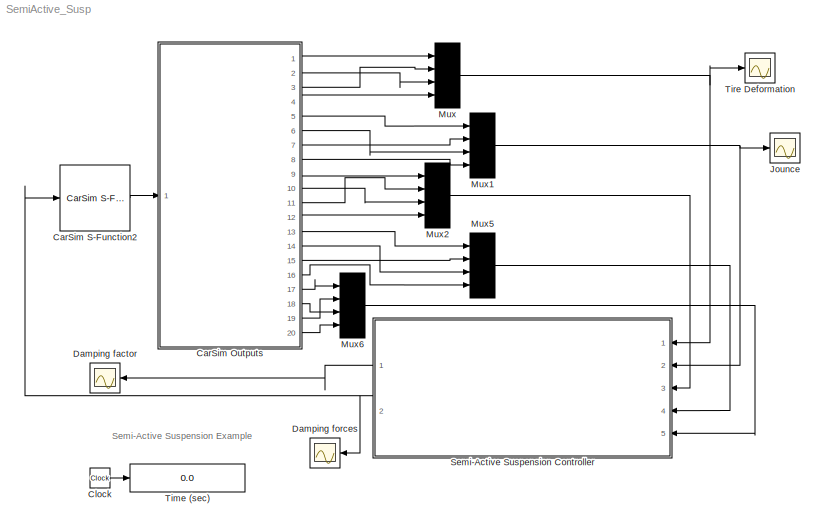
MODEL SemiActive_Susp
KIND model
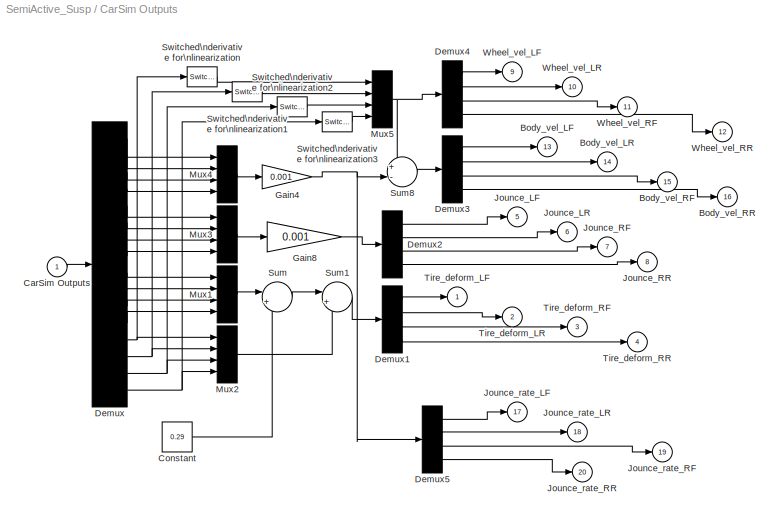
BLOCK [SubSystem] CarSim Outputs
  FunctionWithSeparateData = off
  MaskHideContents = off
  MinAlgLoopOccurrences = off
  Ports = [1, 20]
  PropExecContextOutsideSubsystem = off
  RTWSystemCode = Auto
BLOCK [Outport] CarSim Outputs/Body_vel_LF
  IconDisplay = Port number
  InitialOutput = 0
  Port = 13
BLOCK [Outport] CarSim Outputs/Body_vel_LR
  IconDisplay = Port number
  InitialOutput = 0
  Port = 14
BLOCK [Outport] CarSim Outputs/Body_vel_RF
  IconDisplay = Port number
  InitialOutput = 0
  Port = 15
BLOCK [Outport] CarSim Outputs/Body_vel_RR
  IconDisplay = Port number
  InitialOutput = 0
  Port = 16
BLOCK [Inport] CarSim Outputs/CarSim Outputs
  IconDisplay = Port number
  OutDataType = sfix(16)
  OutScaling = 2^0
BLOCK [Constant] CarSim Outputs/Constant
  OutDataType = sfix(16)
  OutScaling = 2^0
  Value = 0.29
BLOCK [Demux] CarSim Outputs/Demux
  Outputs = 16
  Ports = [1, 16]
BLOCK [Demux] CarSim Outputs/Demux1
  Ports = [1, 4]
BLOCK [Demux] CarSim Outputs/Demux2
  Ports = [1, 4]
BLOCK [Demux] CarSim Outputs/Demux3
  Ports = [1, 4]
BLOCK [Demux] CarSim Outputs/Demux4
  Ports = [1, 4]
BLOCK [Demux] CarSim Outputs/Demux5
  Ports = [1, 4]
BLOCK [Gain] CarSim Outputs/Gain4
  Gain = 0.001
  OutDataType = sfix(16)
  OutScaling = 2^0
  ParameterDataType = sfix(16)
  ParameterScaling = 2^0
BLOCK [Gain] CarSim Outputs/Gain8
  Gain = 0.001
  OutDataType = sfix(16)
  OutScaling = 2^0
  ParameterDataType = sfix(16)
  ParameterScaling = 2^0
BLOCK [Outport] CarSim Outputs/Jounce_LF
  IconDisplay = Port number
  InitialOutput = 0
  Port = 5
BLOCK [Outport] CarSim Outputs/Jounce_LR
  IconDisplay = Port number
  InitialOutput = 0
  Port = 6
BLOCK [Outport] CarSim Outputs/Jounce_RF
  IconDisplay = Port number
  InitialOutput = 0
  Port = 7
BLOCK [Outport] CarSim Outputs/Jounce_RR
  IconDisplay = Port number
  InitialOutput = 0
  Port = 8
BLOCK [Outport] CarSim Outputs/Jounce_rate_LF
  IconDisplay = Port number
  InitialOutput = 0
  Port = 17
BLOCK [Outport] CarSim Outputs/Jounce_rate_LR
  IconDisplay = Port number
  InitialOutput = 0
  Port = 18
BLOCK [Outport] CarSim Outputs/Jounce_rate_RF
  IconDisplay = Port number
  InitialOutput = 0
  Port = 19
BLOCK [Outport] CarSim Outputs/Jounce_rate_RR
  IconDisplay = Port number
  InitialOutput = 0
  Port = 20
BLOCK [Mux] CarSim Outputs/Mux1
  Ports = [4, 1]
BLOCK [Mux] CarSim Outputs/Mux2
  Ports = [4, 1]
BLOCK [Mux] CarSim Outputs/Mux3
  Ports = [4, 1]
BLOCK [Mux] CarSim Outputs/Mux4
  Ports = [4, 1]
BLOCK [Mux] CarSim Outputs/Mux5
  Ports = [4, 1]
BLOCK [Sum] CarSim Outputs/Sum
  IconShape = round
  Inputs = |++
  OutDataType = sfix(16)
  OutScaling = 2^0
  Ports = [2, 1]
BLOCK [Sum] CarSim Outputs/Sum1
  IconShape = round
  Inputs = |+-
  OutDataType = sfix(16)
  OutScaling = 2^0
  Ports = [2, 1]
BLOCK [Sum] CarSim Outputs/Sum8
  IconShape = round
  Inputs = +-|
  OutDataType = sfix(16)
  OutScaling = 2^0
  Ports = [2, 1]
BLOCK [Reference] CarSim Outputs/Switched\nderivative for\nlinearization  REF=simulink_extras/Linearization/Switched\nderivative for\nlinearization
  FunctionWithSeparateData = off
  Ports = [1, 1]
  RTWMemSecDataConstants = Inherit from model
  RTWMemSecDataInternal = Inherit from model
  RTWMemSecDataParameters = Inherit from model
  RTWMemSecFuncExecute = Inherit from model
  RTWMemSecFuncInitTerm = Inherit from model
  ShowPortLabels = FromPortIcon
  SourceBlock = simulink_extras/Linearization/Switched\nderivative for\nlinearization
  SourceType = Derivative for linearization
  SystemSampleTime = -1
  derivConst = 100
  switchVal = 0
BLOCK [Reference] CarSim Outputs/Switched\nderivative for\nlinearization1  REF=simulink_extras/Linearization/Switched\nderivative for\nlinearization
  FunctionWithSeparateData = off
  Ports = [1, 1]
  RTWMemSecDataConstants = Inherit from model
  RTWMemSecDataInternal = Inherit from model
  RTWMemSecDataParameters = Inherit from model
  RTWMemSecFuncExecute = Inherit from model
  RTWMemSecFuncInitTerm = Inherit from model
  ShowPortLabels = FromPortIcon
  SourceBlock = simulink_extras/Linearization/Switched\nderivative for\nlinearization
  SourceType = Derivative for linearization
  SystemSampleTime = -1
  derivConst = 100
  switchVal = 0
BLOCK [Reference] CarSim Outputs/Switched\nderivative for\nlinearization2  REF=simulink_extras/Linearization/Switched\nderivative for\nlinearization
  FunctionWithSeparateData = off
  Ports = [1, 1]
  RTWMemSecDataConstants = Inherit from model
  RTWMemSecDataInternal = Inherit from model
  RTWMemSecDataParameters = Inherit from model
  RTWMemSecFuncExecute = Inherit from model
  RTWMemSecFuncInitTerm = Inherit from model
  ShowPortLabels = FromPortIcon
  SourceBlock = simulink_extras/Linearization/Switched\nderivative for\nlinearization
  SourceType = Derivative for linearization
  SystemSampleTime = -1
  derivConst = 100
  switchVal = 0
BLOCK [Reference] CarSim Outputs/Switched\nderivative for\nlinearization3  REF=simulink_extras/Linearization/Switched\nderivative for\nlinearization
  FunctionWithSeparateData = off
  Ports = [1, 1]
  RTWMemSecDataConstants = Inherit from model
  RTWMemSecDataInternal = Inherit from model
  RTWMemSecDataParameters = Inherit from model
  RTWMemSecFuncExecute = Inherit from model
  RTWMemSecFuncInitTerm = Inherit from model
  ShowPortLabels = FromPortIcon
  SourceBlock = simulink_extras/Linearization/Switched\nderivative for\nlinearization
  SourceType = Derivative for linearization
  SystemSampleTime = -1
  derivConst = 100
  switchVal = 0
BLOCK [Outport] CarSim Outputs/Tire_deform_LF
  IconDisplay = Port number
  InitialOutput = 0
BLOCK [Outport] CarSim Outputs/Tire_deform_LR
  IconDisplay = Port number
  InitialOutput = 0
  Port = 2
BLOCK [Outport] CarSim Outputs/Tire_deform_RF
  IconDisplay = Port number
  InitialOutput = 0
  Port = 3
BLOCK [Outport] CarSim Outputs/Tire_deform_RR
  IconDisplay = Port number
  InitialOutput = 0
  Port = 4
BLOCK [Outport] CarSim Outputs/Wheel_vel_LF
  IconDisplay = Port number
  InitialOutput = 0
  Port = 9
BLOCK [Outport] CarSim Outputs/Wheel_vel_LR
  IconDisplay = Port number
  InitialOutput = 0
  Port = 10
BLOCK [Outport] CarSim Outputs/Wheel_vel_RF
  IconDisplay = Port number
  InitialOutput = 0
  Port = 11
BLOCK [Outport] CarSim Outputs/Wheel_vel_RR
  IconDisplay = Port number
  InitialOutput = 0
  Port = 12
BLOCK [Reference] CarSim S-Function2  REF=Solver_SF/CarSim S-Function2
  AttributesFormatString = Vehicle Code: %<VehicleCode>
  Ports = [1, 1]
  Priority = 1
  SourceBlock = Solver_SF/CarSim S-Function2
  SourceType = Vehicle math model library
  VehicleCode = ???
BLOCK [Clock] Clock
  Decimation = 10
BLOCK [Scope] Damping factor
  DataFormat = Array
  Floating = off
  LimitDataPoints = off
  NumInputPorts = 1
  Ports = [1]
  SampleTime = 100
  TickLabels = on
  YMax = 25000
  YMin = 0
  ZoomMode = yonly
BLOCK [Scope] Damping forces
  DataFormat = Array
  Floating = off
  LimitDataPoints = off
  NumInputPorts = 1
  Ports = [1]
  SampleTime = 100
  SaveName = ScopeData1
  TickLabels = on
  YMax = 25000
  YMin = 0
  ZoomMode = yonly
BLOCK [Scope] Jounce
  DataFormat = Array
  Floating = off
  LimitDataPoints = off
  NumInputPorts = 1
  Ports = [1]
  SampleTime = 100
  TickLabels = on
  YMax = 0.07
  YMin = -0.01
  ZoomMode = yonly
BLOCK [Mux] Mux
  Ports = [4, 1]
BLOCK [Mux] Mux1
  Ports = [4, 1]
BLOCK [Mux] Mux2
  Ports = [4, 1]
BLOCK [Mux] Mux5
  Ports = [4, 1]
BLOCK [Mux] Mux6
  Ports = [4, 1]
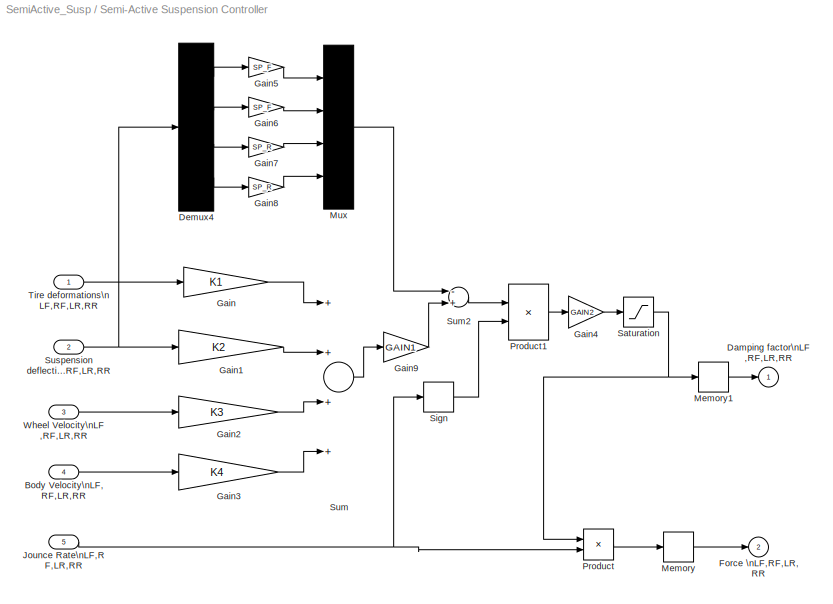
BLOCK [SubSystem] Semi-Active Suspension Controller
  FunctionWithSeparateData = off
  MaskCallbackString = |||||||||
  MaskEnableString = on,on,on,on,on,on,on,on,on,on
  MaskHideContents = off
  MaskIconFrame = on
  MaskIconOpaque = on
  MaskIconRotate = none
  MaskIconUnits = autoscale
  MaskPromptString = Optimal control gain, K1|Optimal control gain, K2|Optimal control gain, K3|Optimal control gain, K4|Spring stiffness (front)  (N/m)|Spring stiffness (rear)  (N/m)|Gain 1|Gain 2|Variable damper upper limit (N-s/m)|Variable damper lower limit (N-s/m)
  MaskStyleString = edit,edit,edit,edit,edit,edit,edit,edit,edit,edit
  MaskToolTipString = on,on,on,on,on,on,on,on,on,on
  MaskTunableValueString = on,on,on,on,on,on,on,on,on,on
  MaskValueString = -14184|8624|1088|-2504|65000|52000|1|2.5|40000|10
  MaskVariables = K1=@1;K2=@2;K3=@3;K4=@4;SP_F=@5;SP_R=@6;GAIN1=@7;GAIN2=@8;UPLIM=@9;LWLIM=@10;
  MaskVisibilityString = on,on,on,on,on,on,on,on,on,on
  MinAlgLoopOccurrences = off
  Ports = [5, 2]
  PropExecContextOutsideSubsystem = off
  RTWSystemCode = Auto
BLOCK [Inport] Semi-Active Suspension Controller/Body Velocity\nLF,RF,LR,RR
  IconDisplay = Port number
  OutDataType = sfix(16)
  OutScaling = 2^0
  Port = 4
BLOCK [Outport] Semi-Active Suspension Controller/Damping factor\nLF,RF,LR,RR
  IconDisplay = Port number
  InitialOutput = 0
BLOCK [Demux] Semi-Active Suspension Controller/Demux4
  Ports = [1, 4]
BLOCK [Outport] Semi-Active Suspension Controller/Force \nLF,RF,LR,RR
  IconDisplay = Port number
  InitialOutput = 0
  Port = 2
BLOCK [Gain] Semi-Active Suspension Controller/Gain
  Gain = K1
  OutDataType = sfix(16)
  OutScaling = 2^0
  ParameterDataType = sfix(16)
  ParameterScaling = 2^0
BLOCK [Gain] Semi-Active Suspension Controller/Gain1
  Gain = K2
  OutDataType = sfix(16)
  OutScaling = 2^0
  ParameterDataType = sfix(16)
  ParameterScaling = 2^0
BLOCK [Gain] Semi-Active Suspension Controller/Gain2
  Gain = K3
  OutDataType = sfix(16)
  OutScaling = 2^0
  ParameterDataType = sfix(16)
  ParameterScaling = 2^0
BLOCK [Gain] Semi-Active Suspension Controller/Gain3
  Gain = K4
  OutDataType = sfix(16)
  OutScaling = 2^0
  ParameterDataType = sfix(16)
  ParameterScaling = 2^0
BLOCK [Gain] Semi-Active Suspension Controller/Gain4
  Gain = GAIN2
  OutDataType = sfix(16)
  OutScaling = 2^0
  ParameterDataType = sfix(16)
  ParameterScaling = 2^0
BLOCK [Gain] Semi-Active Suspension Controller/Gain5
  Gain = SP_F
  OutDataType = sfix(16)
  OutScaling = 2^0
  ParameterDataType = sfix(16)
  ParameterScaling = 2^0
BLOCK [Gain] Semi-Active Suspension Controller/Gain6
  Gain = SP_F
  OutDataType = sfix(16)
  OutScaling = 2^0
  ParameterDataType = sfix(16)
  ParameterScaling = 2^0
BLOCK [Gain] Semi-Active Suspension Controller/Gain7
  Gain = SP_R
  OutDataType = sfix(16)
  OutScaling = 2^0
  ParameterDataType = sfix(16)
  ParameterScaling = 2^0
BLOCK [Gain] Semi-Active Suspension Controller/Gain8
  Gain = SP_R
  OutDataType = sfix(16)
  OutScaling = 2^0
  ParameterDataType = sfix(16)
  ParameterScaling = 2^0
BLOCK [Gain] Semi-Active Suspension Controller/Gain9
  Gain = GAIN1
  OutDataType = sfix(16)
  OutScaling = 2^0
  ParameterDataType = sfix(16)
  ParameterScaling = 2^0
BLOCK [Inport] Semi-Active Suspension Controller/Jounce Rate\nLF,RF,LR,RR
  IconDisplay = Port number
  OutDataType = sfix(16)
  OutScaling = 2^0
  Port = 5
BLOCK [Memory] Semi-Active Suspension Controller/Memory
BLOCK [Memory] Semi-Active Suspension Controller/Memory1
BLOCK [Mux] Semi-Active Suspension Controller/Mux
  Ports = [4, 1]
BLOCK [Product] Semi-Active Suspension Controller/Product
  OutDataType = sfix(16)
  OutScaling = 2^0
  Ports = [2, 1]
  RndMeth = Floor
BLOCK [Product] Semi-Active Suspension Controller/Product1
  OutDataType = sfix(16)
  OutScaling = 2^0
  Ports = [2, 1]
  RndMeth = Floor
BLOCK [Saturate] Semi-Active Suspension Controller/Saturation
  LowerLimit = LWLIM
  UpperLimit = UPLIM
BLOCK [Signum] Semi-Active Suspension Controller/Sign
BLOCK [Sum] Semi-Active Suspension Controller/Sum
  Inputs = ++++
  OutDataType = sfix(16)
  OutScaling = 2^0
  Ports = [4, 1]
BLOCK [Sum] Semi-Active Suspension Controller/Sum2
  Inputs = -+
  OutDataType = sfix(16)
  OutScaling = 2^0
  Ports = [2, 1]
BLOCK [Inport] Semi-Active Suspension Controller/Suspension deflections\nLF,RF,LR,RR
  IconDisplay = Port number
  OutDataType = sfix(16)
  OutScaling = 2^0
  Port = 2
BLOCK [Inport] Semi-Active Suspension Controller/Tire deformations\nLF,RF,LR,RR
  IconDisplay = Port number
  OutDataType = sfix(16)
  OutScaling = 2^0
BLOCK [Inport] Semi-Active Suspension Controller/Wheel Velocity\nLF,RF,LR,RR
  IconDisplay = Port number
  OutDataType = sfix(16)
  OutScaling = 2^0
  Port = 3
BLOCK [Display] Time (sec)
  Decimation = 100
  Format = bank
  Lockdown = off
  Ports = [1]
BLOCK [Scope] Tire Deformation
  DataFormat = Array
  Floating = off
  LimitDataPoints = off
  NumInputPorts = 1
  Ports = [1]
  SampleTime = 100
  TickLabels = on
  YMax = 0.05
  YMin = -0.25
  ZoomMode = yonly
ANNOTATION (root): Semi-Active Suspension Example
LINE CarSim Outputs/CarSim Outputs:1 -> CarSim Outputs/Demux:1
LINE CarSim Outputs/Constant:1 -> CarSim Outputs/Sum:2
LINE CarSim Outputs/Demux1:1 -> CarSim Outputs/Tire_deform_LF:1
LINE CarSim Outputs/Demux1:2 -> CarSim Outputs/Tire_deform_LR:1
LINE CarSim Outputs/Demux1:3 -> CarSim Outputs/Tire_deform_RF:1
LINE CarSim Outputs/Demux1:4 -> CarSim Outputs/Tire_deform_RR:1
LINE CarSim Outputs/Demux2:1 -> CarSim Outputs/Jounce_LF:1
LINE CarSim Outputs/Demux2:2 -> CarSim Outputs/Jounce_LR:1
LINE CarSim Outputs/Demux2:3 -> CarSim Outputs/Jounce_RF:1
LINE CarSim Outputs/Demux2:4 -> CarSim Outputs/Jounce_RR:1
LINE CarSim Outputs/Demux3:1 -> CarSim Outputs/Body_vel_LF:1
LINE CarSim Outputs/Demux3:2 -> CarSim Outputs/Body_vel_LR:1
LINE CarSim Outputs/Demux3:3 -> CarSim Outputs/Body_vel_RF:1
LINE CarSim Outputs/Demux3:4 -> CarSim Outputs/Body_vel_RR:1
LINE CarSim Outputs/Demux4:1 -> CarSim Outputs/Wheel_vel_LF:1
LINE CarSim Outputs/Demux4:2 -> CarSim Outputs/Wheel_vel_LR:1
LINE CarSim Outputs/Demux4:3 -> CarSim Outputs/Wheel_vel_RF:1
LINE CarSim Outputs/Demux4:4 -> CarSim Outputs/Wheel_vel_RR:1
LINE CarSim Outputs/Demux5:1 -> CarSim Outputs/Jounce_rate_LF:1
LINE CarSim Outputs/Demux5:2 -> CarSim Outputs/Jounce_rate_LR:1
LINE CarSim Outputs/Demux5:3 -> CarSim Outputs/Jounce_rate_RF:1
LINE CarSim Outputs/Demux5:4 -> CarSim Outputs/Jounce_rate_RR:1
LINE CarSim Outputs/Demux:1 -> CarSim Outputs/Mux4:1
LINE CarSim Outputs/Demux:10 -> CarSim Outputs/Mux1:2
LINE CarSim Outputs/Demux:11 -> CarSim Outputs/Mux1:3
LINE CarSim Outputs/Demux:12 -> CarSim Outputs/Mux1:4
NET CarSim Outputs/Demux:13 -> CarSim Outputs/Mux2:1, CarSim Outputs/Switched\nderivative for\nlinearization:1
NET CarSim Outputs/Demux:14 -> CarSim Outputs/Mux2:2, CarSim Outputs/Switched\nderivative for\nlinearization1:1
NET CarSim Outputs/Demux:15 -> CarSim Outputs/Mux2:3, CarSim Outputs/Switched\nderivative for\nlinearization2:1
NET CarSim Outputs/Demux:16 -> CarSim Outputs/Mux2:4, CarSim Outputs/Switched\nderivative for\nlinearization3:1
LINE CarSim Outputs/Demux:2 -> CarSim Outputs/Mux4:2
LINE CarSim Outputs/Demux:3 -> CarSim Outputs/Mux4:3
LINE CarSim Outputs/Demux:4 -> CarSim Outputs/Mux4:4
LINE CarSim Outputs/Demux:5 -> CarSim Outputs/Mux3:1
LINE CarSim Outputs/Demux:6 -> CarSim Outputs/Mux3:2
LINE CarSim Outputs/Demux:7 -> CarSim Outputs/Mux3:3
LINE CarSim Outputs/Demux:8 -> CarSim Outputs/Mux3:4
LINE CarSim Outputs/Demux:9 -> CarSim Outputs/Mux1:1
NET CarSim Outputs/Gain4:1 -> CarSim Outputs/Demux5:1, CarSim Outputs/Sum8:2
LINE CarSim Outputs/Gain8:1 -> CarSim Outputs/Demux2:1
LINE CarSim Outputs/Mux1:1 -> CarSim Outputs/Sum:1
LINE CarSim Outputs/Mux2:1 -> CarSim Outputs/Sum1:2
LINE CarSim Outputs/Mux3:1 -> CarSim Outputs/Gain8:1
LINE CarSim Outputs/Mux4:1 -> CarSim Outputs/Gain4:1
NET CarSim Outputs/Mux5:1 -> CarSim Outputs/Demux4:1, CarSim Outputs/Sum8:1
LINE CarSim Outputs/Sum1:1 -> CarSim Outputs/Demux1:1
LINE CarSim Outputs/Sum8:1 -> CarSim Outputs/Demux3:1
LINE CarSim Outputs/Sum:1 -> CarSim Outputs/Sum1:1
LINE CarSim Outputs/Switched\nderivative for\nlinearization1:1 -> CarSim Outputs/Mux5:2
LINE CarSim Outputs/Switched\nderivative for\nlinearization2:1 -> CarSim Outputs/Mux5:3
LINE CarSim Outputs/Switched\nderivative for\nlinearization3:1 -> CarSim Outputs/Mux5:4
LINE CarSim Outputs/Switched\nderivative for\nlinearization:1 -> CarSim Outputs/Mux5:1
LINE CarSim Outputs:1 -> Mux:1
LINE CarSim Outputs:10 -> Mux2:3
LINE CarSim Outputs:11 -> Mux2:2
LINE CarSim Outputs:12 -> Mux2:4
LINE CarSim Outputs:13 -> Mux5:1
LINE CarSim Outputs:14 -> Mux5:3
LINE CarSim Outputs:15 -> Mux5:2
LINE CarSim Outputs:16 -> Mux5:4
LINE CarSim Outputs:17 -> Mux6:1
LINE CarSim Outputs:18 -> Mux6:3
LINE CarSim Outputs:19 -> Mux6:2
LINE CarSim Outputs:2 -> Mux:3
LINE CarSim Outputs:20 -> Mux6:4
LINE CarSim Outputs:3 -> Mux:2
LINE CarSim Outputs:4 -> Mux:4
LINE CarSim Outputs:5 -> Mux1:1
LINE CarSim Outputs:6 -> Mux1:3
LINE CarSim Outputs:7 -> Mux1:2
LINE CarSim Outputs:8 -> Mux1:4
LINE CarSim Outputs:9 -> Mux2:1
LINE CarSim S-Function2:1 -> CarSim Outputs:1
LINE Clock:1 -> Time (sec):1
NET Mux1:1 -> Jounce:1, Semi-Active Suspension Controller:2
LINE Mux2:1 -> Semi-Active Suspension Controller:3
LINE Mux5:1 -> Semi-Active Suspension Controller:4
LINE Mux6:1 -> Semi-Active Suspension Controller:5
NET Mux:1 -> Semi-Active Suspension Controller:1, Tire Deformation:1
LINE Semi-Active Suspension Controller/Body Velocity\nLF,RF,LR,RR:1 -> Semi-Active Suspension Controller/Gain3:1
LINE Semi-Active Suspension Controller/Demux4:1 -> Semi-Active Suspension Controller/Gain5:1
LINE Semi-Active Suspension Controller/Demux4:2 -> Semi-Active Suspension Controller/Gain6:1
LINE Semi-Active Suspension Controller/Demux4:3 -> Semi-Active Suspension Controller/Gain7:1
LINE Semi-Active Suspension Controller/Demux4:4 -> Semi-Active Suspension Controller/Gain8:1
LINE Semi-Active Suspension Controller/Gain1:1 -> Semi-Active Suspension Controller/Sum:2
LINE Semi-Active Suspension Controller/Gain2:1 -> Semi-Active Suspension Controller/Sum:3
LINE Semi-Active Suspension Controller/Gain3:1 -> Semi-Active Suspension Controller/Sum:4
LINE Semi-Active Suspension Controller/Gain4:1 -> Semi-Active Suspension Controller/Saturation:1
LINE Semi-Active Suspension Controller/Gain5:1 -> Semi-Active Suspension Controller/Mux:1
LINE Semi-Active Suspension Controller/Gain6:1 -> Semi-Active Suspension Controller/Mux:2
LINE Semi-Active Suspension Controller/Gain7:1 -> Semi-Active Suspension Controller/Mux:3
LINE Semi-Active Suspension Controller/Gain8:1 -> Semi-Active Suspension Controller/Mux:4
LINE Semi-Active Suspension Controller/Gain9:1 -> Semi-Active Suspension Controller/Sum2:2
LINE Semi-Active Suspension Controller/Gain:1 -> Semi-Active Suspension Controller/Sum:1
NET Semi-Active Suspension Controller/Jounce Rate\nLF,RF,LR,RR:1 -> Semi-Active Suspension Controller/Product:2, Semi-Active Suspension Controller/Sign:1
LINE Semi-Active Suspension Controller/Memory1:1 -> Semi-Active Suspension Controller/Damping factor\nLF,RF,LR,RR:1
LINE Semi-Active Suspension Controller/Memory:1 -> Semi-Active Suspension Controller/Force \nLF,RF,LR,RR:1
LINE Semi-Active Suspension Controller/Mux:1 -> Semi-Active Suspension Controller/Sum2:1
LINE Semi-Active Suspension Controller/Product1:1 -> Semi-Active Suspension Controller/Gain4:1
LINE Semi-Active Suspension Controller/Product:1 -> Semi-Active Suspension Controller/Memory:1
NET Semi-Active Suspension Controller/Saturation:1 -> Semi-Active Suspension Controller/Memory1:1, Semi-Active Suspension Controller/Product:1
LINE Semi-Active Suspension Controller/Sign:1 -> Semi-Active Suspension Controller/Product1:2
LINE Semi-Active Suspension Controller/Sum2:1 -> Semi-Active Suspension Controller/Product1:1
LINE Semi-Active Suspension Controller/Sum:1 -> Semi-Active Suspension Controller/Gain9:1
NET Semi-Active Suspension Controller/Suspension deflections\nLF,RF,LR,RR:1 -> Semi-Active Suspension Controller/Demux4:1, Semi-Active Suspension Controller/Gain1:1
LINE Semi-Active Suspension Controller/Tire deformations\nLF,RF,LR,RR:1 -> Semi-Active Suspension Controller/Gain:1
LINE Semi-Active Suspension Controller/Wheel Velocity\nLF,RF,LR,RR:1 -> Semi-Active Suspension Controller/Gain2:1
LINE Semi-Active Suspension Controller:1 -> Damping factor:1
NET Semi-Active Suspension Controller:2 -> CarSim S-Function2:1, Damping forces:1
note: NET lines group one-source signal fan-out (src -> all destinations, sorted); 1:1 wires keep LINE
